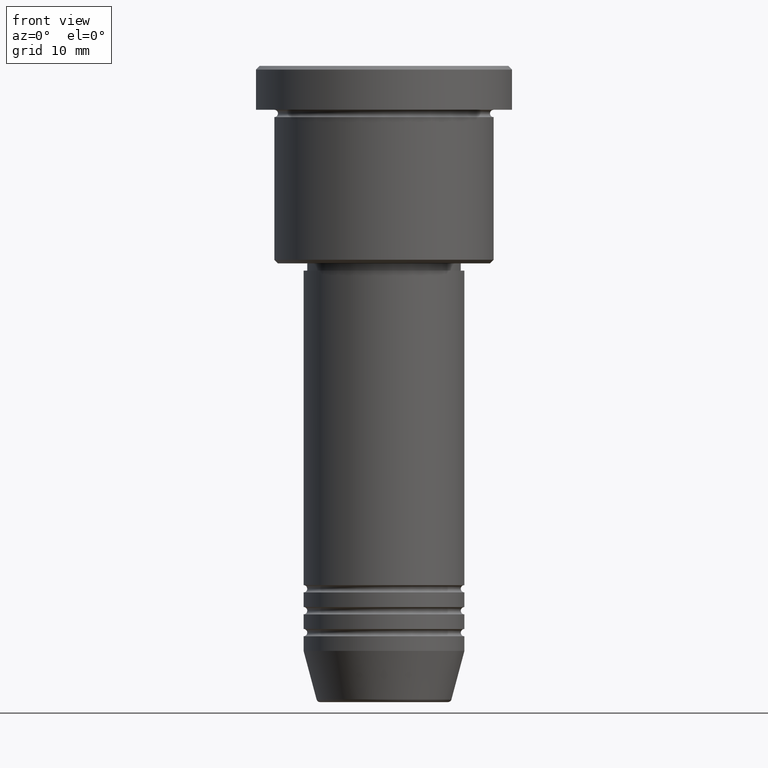
[diagram: clean part render]
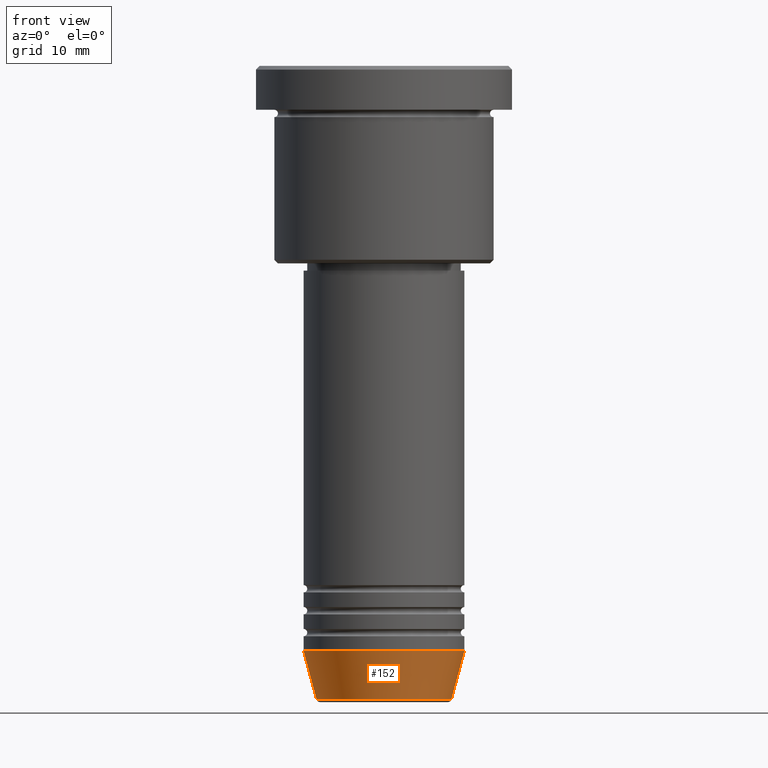
[diagram: same view with one face highlighted and labeled with its STEP entity id]
A machine part, front view. The second image highlights one B-rep face of the part: STEP entity #152.
In plain terms, the highlighted conical surface has half-angle 15 deg.
Its self-contained STEP definition (entity closure, byte-faithful):
#29 = CARTESIAN_POINT ( 'NONE',  ( 0.000000000000000000, 0.000000000000000000, -79.99999999999998579 ) ) ;
#58 = DIRECTION ( 'NONE',  ( 1.000000000000000000, 0.000000000000000000, 0.000000000000000000 ) ) ;
#64 = EDGE_CURVE ( 'NONE', #883, #939, #428, .T. ) ;
#66 = VECTOR ( 'NONE', #91, 1000.000000000000000 ) ;
#71 = EDGE_CURVE ( 'NONE', #883, #728, #340, .T. ) ;
#91 = DIRECTION ( 'NONE',  ( 0.2588190451025213501, 0.000000000000000000, 0.9659258262890680902 ) ) ;
#100 = AXIS2_PLACEMENT_3D ( 'NONE', #381, #950, #879 ) ;
#152 = ADVANCED_FACE ( 'NONE', ( #877 ), #468, .T. ) ;
#156 = ORIENTED_EDGE ( 'NONE', *, *, #645, .F. ) ;
#174 = CARTESIAN_POINT ( 'NONE',  ( 11.00000000000000000, 0.000000000000000000, -79.99999999999998579 ) ) ;
#188 = ORIENTED_EDGE ( 'NONE', *, *, #64, .F. ) ;
#226 = AXIS2_PLACEMENT_3D ( 'NONE', #684, #322, #882 ) ;
#298 = VERTEX_POINT ( 'NONE', #1078 ) ;
#303 = EDGE_CURVE ( 'NONE', #728, #298, #613, .T. ) ;
#319 = ORIENTED_EDGE ( 'NONE', *, *, #71, .T. ) ;
#322 = DIRECTION ( 'NONE',  ( -0.000000000000000000, -0.000000000000000000, 1.000000000000000000 ) ) ;
#340 = CIRCLE ( 'NONE', #100, 9.223655072137187716 ) ;
#381 = CARTESIAN_POINT ( 'NONE',  ( 0.000000000000000000, 0.000000000000000000, -86.62940952255124216 ) ) ;
#428 = LINE ( 'NONE', #700, #799 ) ;
#468 = CONICAL_SURFACE ( 'NONE', #226, 11.00000000000000000, 0.2617993877991500740 ) ;
#475 = DIRECTION ( 'NONE',  ( -0.000000000000000000, -0.000000000000000000, 1.000000000000000000 ) ) ;
#521 = EDGE_LOOP ( 'NONE', ( #188, #319, #933, #156 ) ) ;
#592 = CARTESIAN_POINT ( 'NONE',  ( 9.223655072137187716, 0.000000000000000000, -86.62940952255124216 ) ) ;
#613 = LINE ( 'NONE', #174, #66 ) ;
#645 = EDGE_CURVE ( 'NONE', #939, #298, #1077, .T. ) ;
#684 = CARTESIAN_POINT ( 'NONE',  ( 0.000000000000000000, 0.000000000000000000, -79.99999999999998579 ) ) ;
#700 = CARTESIAN_POINT ( 'NONE',  ( -11.00000000000000000, 1.347111479062088405E-15, -79.99999999999998579 ) ) ;
#728 = VERTEX_POINT ( 'NONE', #592 ) ;
#799 = VECTOR ( 'NONE', #987, 1000.000000000000000 ) ;
#846 = CARTESIAN_POINT ( 'NONE',  ( -11.00000000000000000, 1.347111479062088405E-15, -79.99999999999998579 ) ) ;
#877 = FACE_OUTER_BOUND ( 'NONE', #521, .T. ) ;
#879 = DIRECTION ( 'NONE',  ( 1.000000000000000000, 0.000000000000000000, 0.000000000000000000 ) ) ;
#882 = DIRECTION ( 'NONE',  ( 1.000000000000000000, 0.000000000000000000, 0.000000000000000000 ) ) ;
#883 = VERTEX_POINT ( 'NONE', #1160 ) ;
#933 = ORIENTED_EDGE ( 'NONE', *, *, #303, .T. ) ;
#939 = VERTEX_POINT ( 'NONE', #846 ) ;
#950 = DIRECTION ( 'NONE',  ( -0.000000000000000000, -0.000000000000000000, 1.000000000000000000 ) ) ;
#987 = DIRECTION ( 'NONE',  ( -0.2588190451025213501, 3.169619151431772337E-17, 0.9659258262890680902 ) ) ;
#1077 = CIRCLE ( 'NONE', #1129, 11.00000000000000000 ) ;
#1078 = CARTESIAN_POINT ( 'NONE',  ( 11.00000000000000000, 0.000000000000000000, -79.99999999999998579 ) ) ;
#1129 = AXIS2_PLACEMENT_3D ( 'NONE', #29, #475, #58 ) ;
#1160 = CARTESIAN_POINT ( 'NONE',  ( -9.223655072137187716, 1.238341722557647004E-15, -86.62940952255124216 ) ) ;